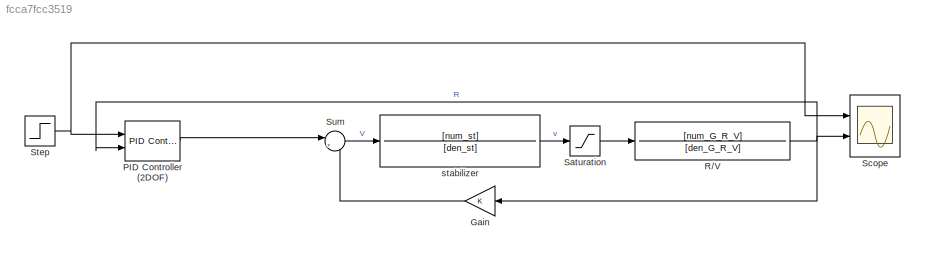
MODEL slx_fcca7fcc3519
KIND model
CONFIG AbsTol = auto
CONFIG EnableMultiTasking = off
CONFIG FixedStep = step_time
CONFIG MaxStep = auto
CONFIG MinStep = auto
CONFIG RelTol = 1e-3
CONFIG SampleTimeConstraint = Unconstrained
CONFIG Solver = ode4
CONFIG SolverName = ode4
CONFIG StartTime = 0.0
CONFIG StopTime = stop_time
BLOCK [Gain] Gain
  NameLocation = top
BLOCK [Reference] PID Controller (2DOF)  REF=simulink/Continuous/PID Controller (2DOF)
  Ports = [2, 1]
  SourceBlock = simulink/Continuous/PID Controller (2DOF)
  SourceProductBaseCode = SL
  SourceType = PID 2dof
BLOCK [TransferFcn] R//V
  Denominator = [den_G_R_V]
  Numerator = [num_G_R_V]
BLOCK [Saturate] Saturation
  LowerLimit = -100
  UpperLimit = 100
BLOCK [Scope] Scope
  Floating = off
  NumInputPorts = 2
  Ports = [2]
  ScopeSpecificationString = Simulink.scopes.TimeScopeBlockCfg('CurrentConfiguration', extmgr.ConfigurationSet(extmgr.Configuration('Core','General UI',true),extmgr.Configuration('Core','Source UI',true),extmgr.Configuration('Sources','WiredSimulink',true),extmgr.Configuration('Visuals','Time Domain',true,'SerializedDisplays',{struct('MinYLimReal','-0.07052','MaxYLimReal','0.63467','YLabelReal','','MinYLimMag','0.00000','MaxY...<+1353ch>
BLOCK [Step] Step
  After = 0.5
  SampleTime = 0
  Time = 0
BLOCK [Sum] Sum
  Inputs = |+-
  Ports = [2, 1]
BLOCK [TransferFcn] stabilizer
  Denominator = [den_st]
  Numerator = [num_st]
LINE Gain:1 -> Sum:2
LINE PID Controller (2DOF):1 -> Sum:1
NET R//V:1 -> Gain:1, PID Controller (2DOF):2, Scope:2
LINE Saturation:1 -> R//V:1
NET Step:1 -> PID Controller (2DOF):1, Scope:1
LINE Sum:1 -> stabilizer:1
LINE stabilizer:1 -> Saturation:1
note: NET lines group one-source signal fan-out (src -> all destinations, sorted); 1:1 wires keep LINE
